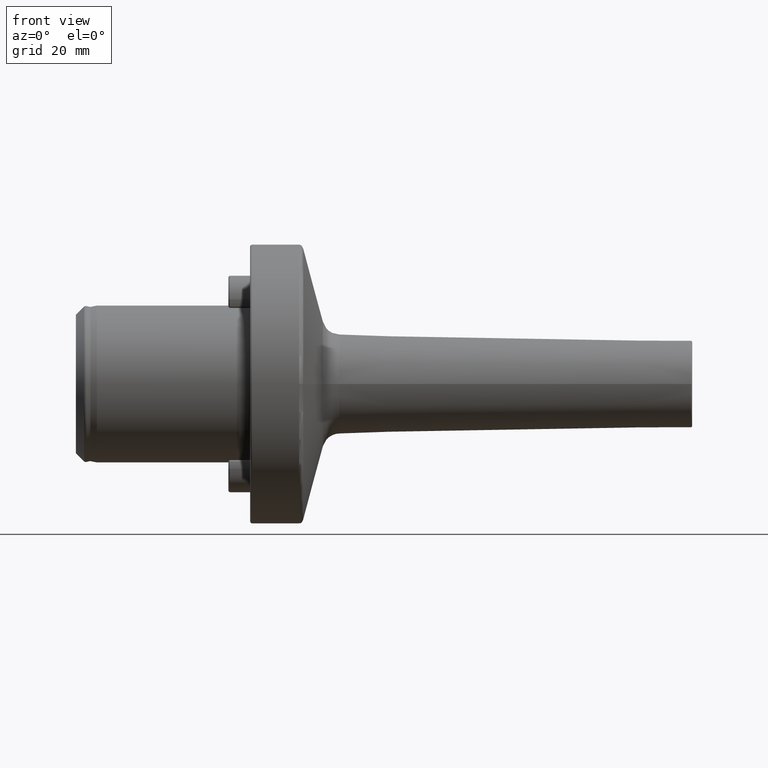
[diagram: clean part render]
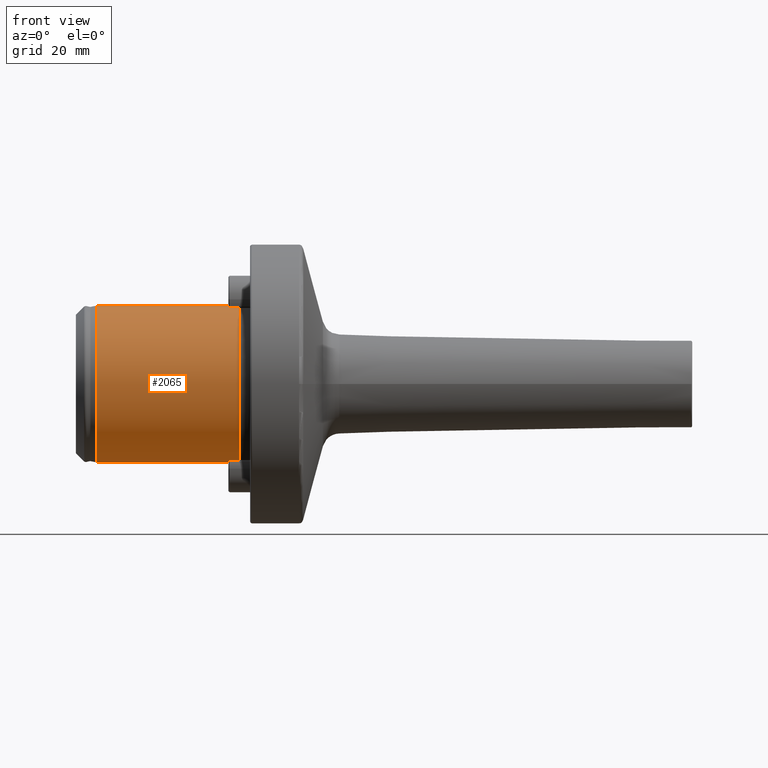
[diagram: same view with one face highlighted and labeled with its STEP entity id]
A machine part, front view. The second image highlights one B-rep face of the part: STEP entity #2065.
In plain terms, the highlighted cylindrical surface (partial cylindrical patch) has radius 18 mm, axis along (-1, -0, -0).
Its self-contained STEP definition (entity closure, byte-faithful):
#106 = ORIENTED_EDGE ( 'NONE', *, *, #941, .F. ) ;
#175 = ORIENTED_EDGE ( 'NONE', *, *, #2908, .T. ) ;
#179 = VECTOR ( 'NONE', #3237, 1000.000000000000000 ) ;
#223 = ORIENTED_EDGE ( 'NONE', *, *, #1005, .T. ) ;
#227 = LINE ( 'NONE', #3246, #179 ) ;
#230 = ORIENTED_EDGE ( 'NONE', *, *, #2841, .F. ) ;
#243 = CARTESIAN_POINT ( 'NONE',  ( -2.500000000000002200, 0.0000000000000000000, 18.00000000000000000 ) ) ;
#321 = CARTESIAN_POINT ( 'NONE',  ( -2.500000000000002200, 0.0000000000000000000, 0.0000000000000000000 ) ) ;
#346 = LINE ( 'NONE', #3522, #412 ) ;
#358 = DIRECTION ( 'NONE',  ( -1.000000000000000000, -0.0000000000000000000, -0.0000000000000000000 ) ) ;
#406 = VERTEX_POINT ( 'NONE', #1559 ) ;
#412 = VECTOR ( 'NONE', #3532, 1000.000000000000000 ) ;
#467 = DIRECTION ( 'NONE',  ( 0.0000000000000000000, 0.0000000000000000000, 1.000000000000000000 ) ) ;
#817 = DIRECTION ( 'NONE',  ( 0.0000000000000000000, 0.0000000000000000000, 1.000000000000000000 ) ) ;
#827 = DIRECTION ( 'NONE',  ( -1.000000000000000000, -0.0000000000000000000, -0.0000000000000000000 ) ) ;
#835 = CARTESIAN_POINT ( 'NONE',  ( -35.20000000000000300, 0.0000000000000000000, 0.0000000000000000000 ) ) ;
#941 = EDGE_CURVE ( 'NONE', #1453, #406, #346, .T. ) ;
#1005 = EDGE_CURVE ( 'NONE', #4864, #4480, #227, .T. ) ;
#1310 = AXIS2_PLACEMENT_3D ( 'NONE', #4168, #4180, #4163 ) ;
#1413 = CYLINDRICAL_SURFACE ( 'NONE', #1310, 18.00000000000000000 ) ;
#1453 = VERTEX_POINT ( 'NONE', #1583 ) ;
#1559 = CARTESIAN_POINT ( 'NONE',  ( -35.20000000000000300, 0.0000000000000000000, -18.00000000000000000 ) ) ;
#1583 = CARTESIAN_POINT ( 'NONE',  ( -2.500000000000002200, 2.204364238465235400E-015, -18.00000000000000000 ) ) ;
#1845 = EDGE_LOOP ( 'NONE', ( #106, #175, #223, #230 ) ) ;
#2065 = ADVANCED_FACE ( 'NONE', ( #2094 ), #1413, .T. ) ;
#2094 = FACE_OUTER_BOUND ( 'NONE', #1845, .T. ) ;
#2841 = EDGE_CURVE ( 'NONE', #406, #4480, #4567, .T. ) ;
#2908 = EDGE_CURVE ( 'NONE', #1453, #4864, #3773, .T. ) ;
#3225 = AXIS2_PLACEMENT_3D ( 'NONE', #321, #358, #467 ) ;
#3237 = DIRECTION ( 'NONE',  ( -1.000000000000000000, -0.0000000000000000000, -0.0000000000000000000 ) ) ;
#3246 = CARTESIAN_POINT ( 'NONE',  ( -40.00000000000000000, 0.0000000000000000000, 18.00000000000000000 ) ) ;
#3370 = AXIS2_PLACEMENT_3D ( 'NONE', #835, #827, #817 ) ;
#3522 = CARTESIAN_POINT ( 'NONE',  ( -40.00000000000000000, 2.204364238465235400E-015, -18.00000000000000000 ) ) ;
#3532 = DIRECTION ( 'NONE',  ( -1.000000000000000000, -0.0000000000000000000, -0.0000000000000000000 ) ) ;
#3773 = CIRCLE ( 'NONE', #3225, 18.00000000000000000 ) ;
#4163 = DIRECTION ( 'NONE',  ( 0.0000000000000000000, 0.0000000000000000000, 1.000000000000000000 ) ) ;
#4168 = CARTESIAN_POINT ( 'NONE',  ( -40.00000000000000000, 0.0000000000000000000, 0.0000000000000000000 ) ) ;
#4180 = DIRECTION ( 'NONE',  ( -1.000000000000000000, -0.0000000000000000000, -0.0000000000000000000 ) ) ;
#4480 = VERTEX_POINT ( 'NONE', #4554 ) ;
#4554 = CARTESIAN_POINT ( 'NONE',  ( -35.20000000000000300, 2.204364238465235400E-015, 18.00000000000000000 ) ) ;
#4567 = CIRCLE ( 'NONE', #3370, 18.00000000000000000 ) ;
#4864 = VERTEX_POINT ( 'NONE', #243 ) ;